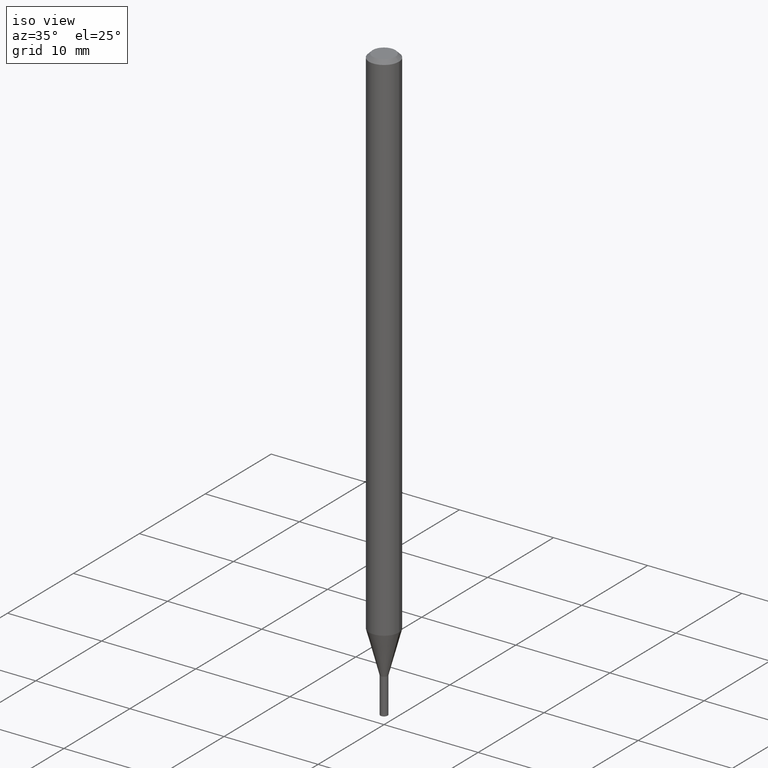
[diagram: clean part render]
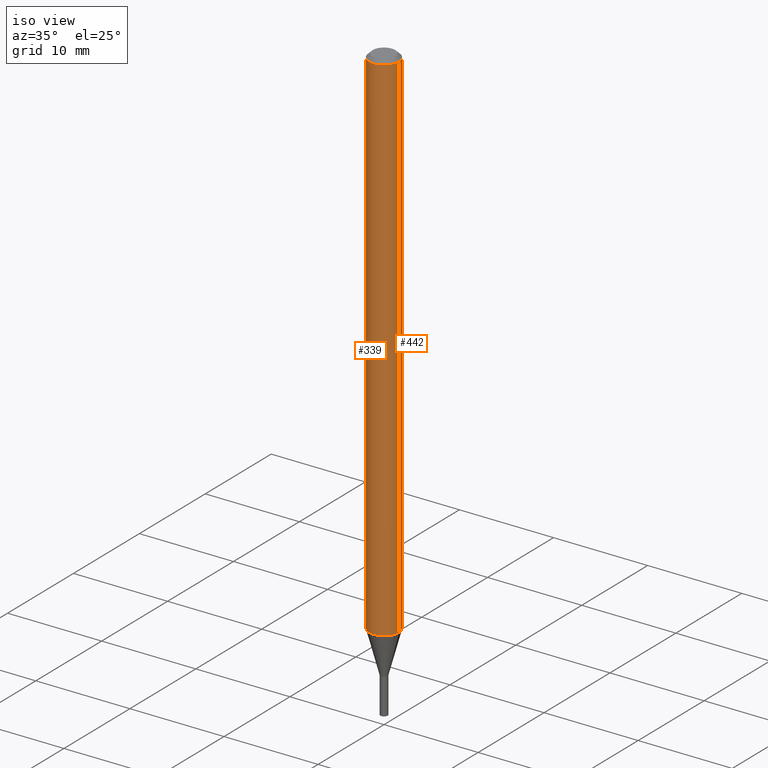
[diagram: same view with one multi-face feature highlighted, each face labeled with its STEP entity id]
A machine part, iso view. The highlighted faces form ONE feature: a constant-radius fillet chain: 2 tangent blend faces with common blend radius 1.5875 mm. The faces share edges in the B-rep.
Their STEP definitions:
[1] entity #442 (Cylinder):
#9 = CARTESIAN_POINT ( 'NONE',  ( 0.000000000000000000, 0.000000000000000000, 0.000000000000000000 ) ) ;
#13 = AXIS2_PLACEMENT_3D ( 'NONE', #9, #335, #158 ) ;
#21 = AXIS2_PLACEMENT_3D ( 'NONE', #100, #315, #369 ) ;
#27 = EDGE_CURVE ( 'NONE', #254, #258, #451, .T. ) ;
#37 = ORIENTED_EDGE ( 'NONE', *, *, #136, .F. ) ;
#43 = CARTESIAN_POINT ( 'NONE',  ( 0.06250000000000000000, -4.888073874380388472E-16, -0.01499999999999999944 ) ) ;
#63 = CIRCLE ( 'NONE', #21, 0.06250000000000000000 ) ;
#64 = AXIS2_PLACEMENT_3D ( 'NONE', #160, #371, #233 ) ;
#69 = CARTESIAN_POINT ( 'NONE',  ( -0.06250000000000000000, -3.375115811763730351E-15, -0.01499999999999999944 ) ) ;
#100 = CARTESIAN_POINT ( 'NONE',  ( 5.313337537467207384E-29, -7.586037823144938462E-15, -2.172727586640479824 ) ) ;
#108 = EDGE_LOOP ( 'NONE', ( #238, #222, #209, #37 ) ) ;
#117 = EDGE_CURVE ( 'NONE', #463, #254, #63, .T. ) ;
#126 = FACE_OUTER_BOUND ( 'NONE', #108, .T. ) ;
#133 = CIRCLE ( 'NONE', #64, 0.06250000000000000000 ) ;
#136 = EDGE_CURVE ( 'NONE', #463, #187, #167, .T. ) ;
#158 = DIRECTION ( 'NONE',  ( 1.000000000000000000, -6.982962677686266711E-15, 4.876176775795935793E-29 ) ) ;
#160 = CARTESIAN_POINT ( 'NONE',  ( 3.668203209277705088E-31, -5.237222008264718399E-17, -0.01499999999999999944 ) ) ;
#167 = LINE ( 'NONE', #344, #415 ) ;
#187 = VERTEX_POINT ( 'NONE', #43 ) ;
#209 = ORIENTED_EDGE ( 'NONE', *, *, #462, .F. ) ;
#222 = ORIENTED_EDGE ( 'NONE', *, *, #27, .T. ) ;
#233 = DIRECTION ( 'NONE',  ( 1.000000000000000000, -6.982962677686266711E-15, 0.000000000000000000 ) ) ;
#238 = ORIENTED_EDGE ( 'NONE', *, *, #117, .T. ) ;
#239 = DIRECTION ( 'NONE',  ( -2.445468806185136877E-29, 3.491481338843145188E-15, 1.000000000000000000 ) ) ;
#254 = VERTEX_POINT ( 'NONE', #257 ) ;
#257 = CARTESIAN_POINT ( 'NONE',  ( -0.06249999999999999306, -7.141948613294875845E-15, -2.172727586640479824 ) ) ;
#258 = VERTEX_POINT ( 'NONE', #69 ) ;
#304 = CYLINDRICAL_SURFACE ( 'NONE', #13, 0.06250000000000000000 ) ;
#313 = DIRECTION ( 'NONE',  ( -2.445468806185136877E-29, 3.491481338843145188E-15, 1.000000000000000000 ) ) ;
#315 = DIRECTION ( 'NONE',  ( -2.445468806185136597E-29, 3.491481338843145583E-15, 1.000000000000000000 ) ) ;
#335 = DIRECTION ( 'NONE',  ( -2.445468806185136597E-29, 3.491481338843145583E-15, 1.000000000000000000 ) ) ;
#344 = CARTESIAN_POINT ( 'NONE',  ( 0.06250000000000000000, -4.364351673553916694E-16, 3.047610484872459871E-30 ) ) ;
#369 = DIRECTION ( 'NONE',  ( 1.000000000000000000, -6.982962677686262766E-15, 0.000000000000000000 ) ) ;
#371 = DIRECTION ( 'NONE',  ( -2.445468806185136597E-29, 3.491481338843145583E-15, 1.000000000000000000 ) ) ;
#376 = CARTESIAN_POINT ( 'NONE',  ( -0.06250000000000000000, 4.440892098500626162E-16, -3.074334431409316114E-30 ) ) ;
#412 = CARTESIAN_POINT ( 'NONE',  ( 0.06249999999999999306, -8.022472990500330131E-15, -2.172727586640479824 ) ) ;
#415 = VECTOR ( 'NONE', #313, 39.37007874015748143 ) ;
#442 = ADVANCED_FACE ( 'NONE', ( #126 ), #304, .T. ) ;
#444 = VECTOR ( 'NONE', #239, 39.37007874015748143 ) ;
#451 = LINE ( 'NONE', #376, #444 ) ;
#462 = EDGE_CURVE ( 'NONE', #187, #258, #133, .T. ) ;
#463 = VERTEX_POINT ( 'NONE', #412 ) ;
[2] entity #339 (Cylinder):
#7 = ORIENTED_EDGE ( 'NONE', *, *, #78, .F. ) ;
#27 = EDGE_CURVE ( 'NONE', #254, #258, #451, .T. ) ;
#34 = ORIENTED_EDGE ( 'NONE', *, *, #322, .T. ) ;
#43 = CARTESIAN_POINT ( 'NONE',  ( 0.06250000000000000000, -4.888073874380388472E-16, -0.01499999999999999944 ) ) ;
#69 = CARTESIAN_POINT ( 'NONE',  ( -0.06250000000000000000, -3.375115811763730351E-15, -0.01499999999999999944 ) ) ;
#78 = EDGE_CURVE ( 'NONE', #258, #187, #269, .T. ) ;
#80 = FACE_OUTER_BOUND ( 'NONE', #279, .T. ) ;
#110 = AXIS2_PLACEMENT_3D ( 'NONE', #398, #259, #116 ) ;
#116 = DIRECTION ( 'NONE',  ( 1.000000000000000000, -6.982962677686262766E-15, 0.000000000000000000 ) ) ;
#136 = EDGE_CURVE ( 'NONE', #463, #187, #167, .T. ) ;
#143 = ORIENTED_EDGE ( 'NONE', *, *, #27, .F. ) ;
#155 = ORIENTED_EDGE ( 'NONE', *, *, #136, .T. ) ;
#167 = LINE ( 'NONE', #344, #415 ) ;
#187 = VERTEX_POINT ( 'NONE', #43 ) ;
#194 = DIRECTION ( 'NONE',  ( 1.000000000000000000, -6.982962677686266711E-15, 4.876176775795935793E-29 ) ) ;
#204 = DIRECTION ( 'NONE',  ( -2.445468806185136597E-29, 3.491481338843145583E-15, 1.000000000000000000 ) ) ;
#239 = DIRECTION ( 'NONE',  ( -2.445468806185136877E-29, 3.491481338843145188E-15, 1.000000000000000000 ) ) ;
#254 = VERTEX_POINT ( 'NONE', #257 ) ;
#257 = CARTESIAN_POINT ( 'NONE',  ( -0.06249999999999999306, -7.141948613294875845E-15, -2.172727586640479824 ) ) ;
#258 = VERTEX_POINT ( 'NONE', #69 ) ;
#259 = DIRECTION ( 'NONE',  ( -2.445468806185136597E-29, 3.491481338843145583E-15, 1.000000000000000000 ) ) ;
#269 = CIRCLE ( 'NONE', #375, 0.06250000000000000000 ) ;
#279 = EDGE_LOOP ( 'NONE', ( #143, #34, #155, #7 ) ) ;
#283 = DIRECTION ( 'NONE',  ( 1.000000000000000000, -6.982962677686266711E-15, 0.000000000000000000 ) ) ;
#286 = CYLINDRICAL_SURFACE ( 'NONE', #408, 0.06250000000000000000 ) ;
#306 = CARTESIAN_POINT ( 'NONE',  ( 3.668203209277705088E-31, -5.237222008264718399E-17, -0.01499999999999999944 ) ) ;
#313 = DIRECTION ( 'NONE',  ( -2.445468806185136877E-29, 3.491481338843145188E-15, 1.000000000000000000 ) ) ;
#319 = DIRECTION ( 'NONE',  ( -2.445468806185136597E-29, 3.491481338843145583E-15, 1.000000000000000000 ) ) ;
#322 = EDGE_CURVE ( 'NONE', #254, #463, #393, .T. ) ;
#339 = ADVANCED_FACE ( 'NONE', ( #80 ), #286, .T. ) ;
#344 = CARTESIAN_POINT ( 'NONE',  ( 0.06250000000000000000, -4.364351673553916694E-16, 3.047610484872459871E-30 ) ) ;
#375 = AXIS2_PLACEMENT_3D ( 'NONE', #306, #204, #283 ) ;
#376 = CARTESIAN_POINT ( 'NONE',  ( -0.06250000000000000000, 4.440892098500626162E-16, -3.074334431409316114E-30 ) ) ;
#393 = CIRCLE ( 'NONE', #110, 0.06250000000000000000 ) ;
#398 = CARTESIAN_POINT ( 'NONE',  ( 5.313337537467207384E-29, -7.586037823144938462E-15, -2.172727586640479824 ) ) ;
#408 = AXIS2_PLACEMENT_3D ( 'NONE', #422, #319, #194 ) ;
#412 = CARTESIAN_POINT ( 'NONE',  ( 0.06249999999999999306, -8.022472990500330131E-15, -2.172727586640479824 ) ) ;
#415 = VECTOR ( 'NONE', #313, 39.37007874015748143 ) ;
#422 = CARTESIAN_POINT ( 'NONE',  ( 0.000000000000000000, 0.000000000000000000, 0.000000000000000000 ) ) ;
#444 = VECTOR ( 'NONE', #239, 39.37007874015748143 ) ;
#451 = LINE ( 'NONE', #376, #444 ) ;
#463 = VERTEX_POINT ( 'NONE', #412 ) ;